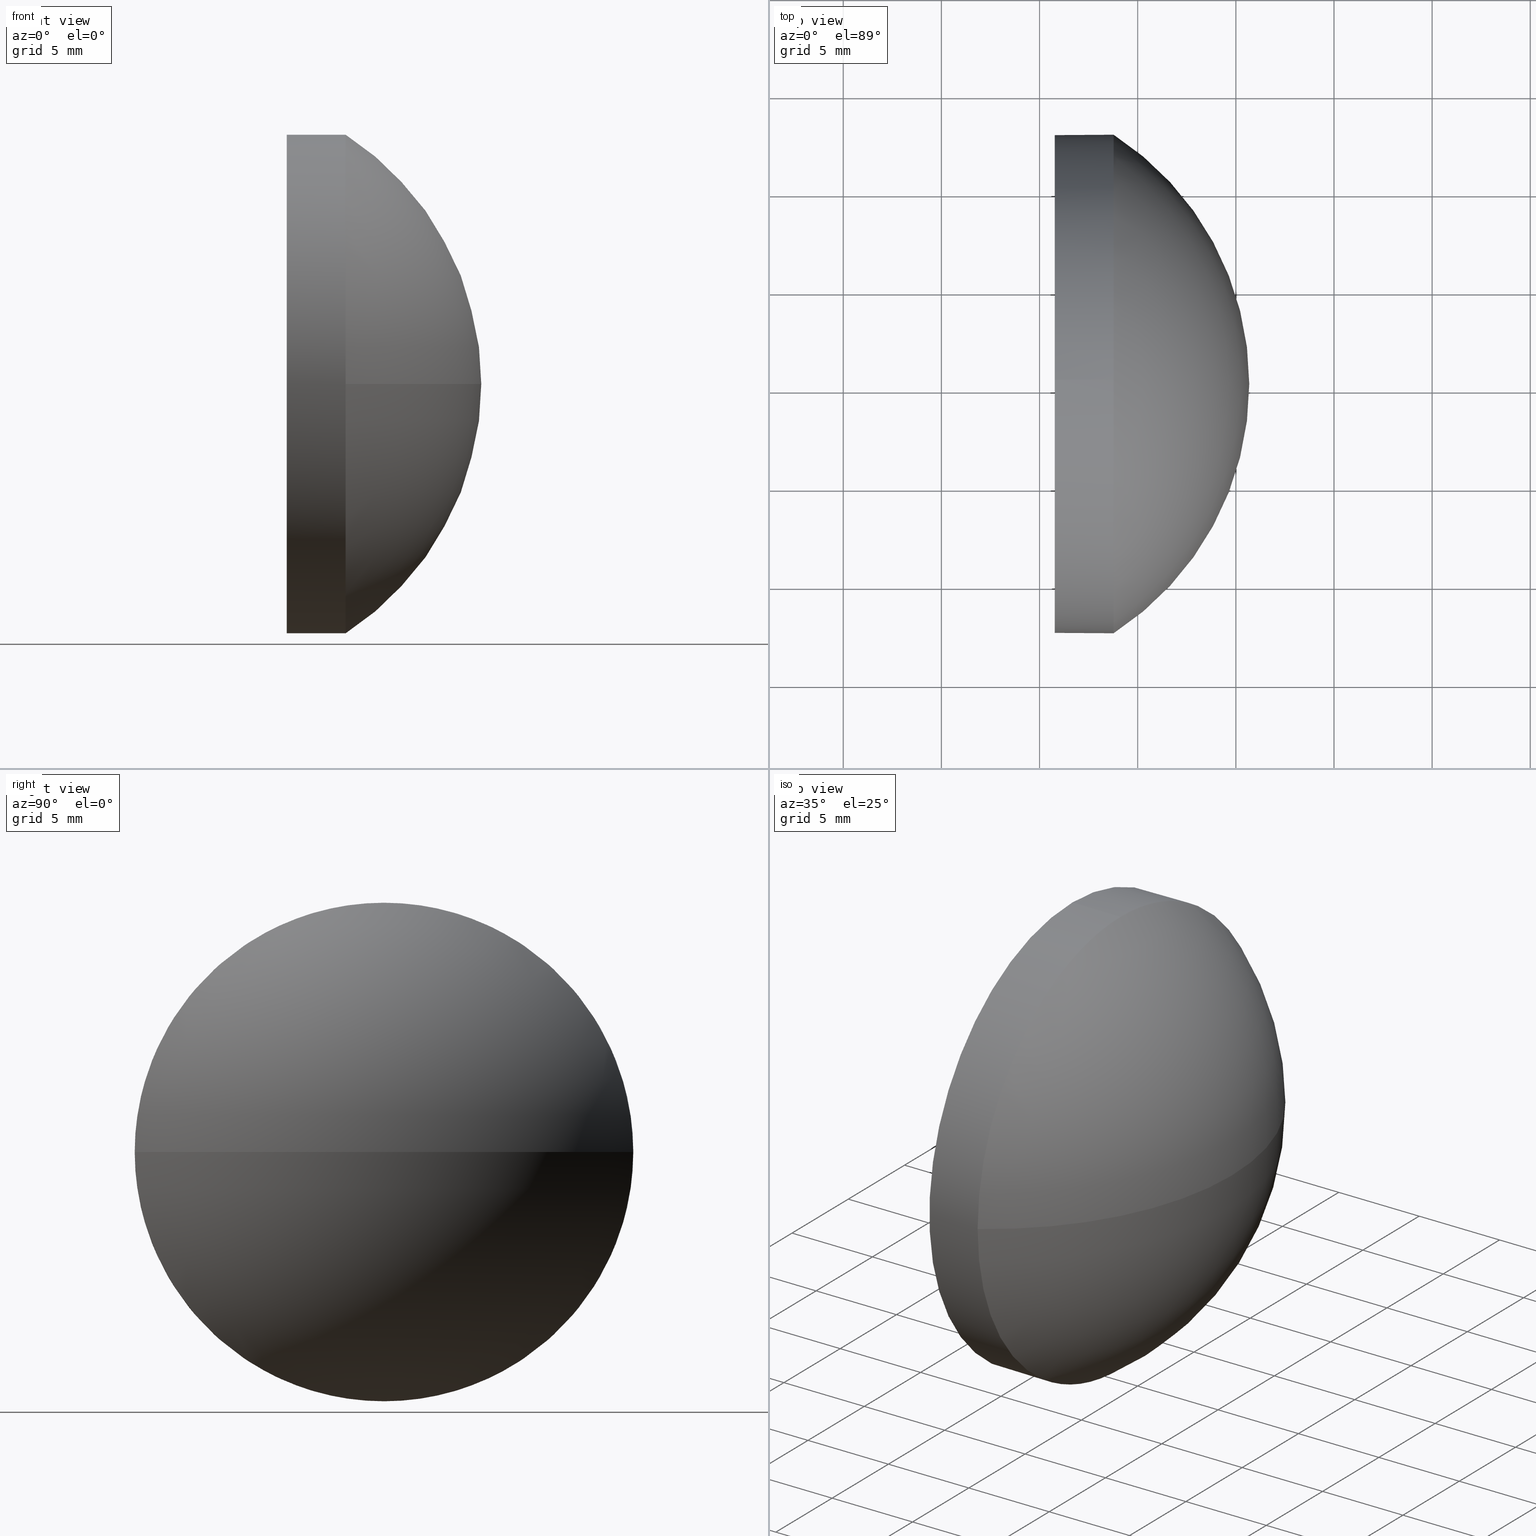
[diagram: canonical four-view strip — front | top / right | iso, engineering-drawing reading convention]
A machine part, canonical four-view strip (front | top / right | iso — engineering-drawing reading convention). The complete STEP part file that produces these views, byte-faithful:
ISO-10303-21;
HEADER;
FILE_DESCRIPTION (( 'STEP AP214' ),
    '1' );
FILE_NAME ('400018.STEP',
    '2019-08-21T05:51:47',
    ( '' ),
    ( '' ),
    'SwSTEP 2.0',
    'SolidWorks 2016',
    '' );
FILE_SCHEMA (( 'AUTOMOTIVE_DESIGN' ));
ENDSEC;

DATA;
#1 = PRODUCT_DEFINITION_FORMATION_WITH_SPECIFIED_SOURCE ( '�κ�', '', #99, .NOT_KNOWN. ) ;
#2 = AXIS2_PLACEMENT_3D ( 'NONE', #179, #170, #69 ) ;
#3 = FACE_OUTER_BOUND ( 'NONE', #33, .T. ) ;
#4 = EDGE_CURVE ( 'NONE', #186, #147, #66, .T. ) ;
#5 = DIRECTION ( 'NONE',  ( -0.0000000000000000000, 0.0000000000000000000, -1.000000000000000000 ) ) ;
#6 = UNCERTAINTY_MEASURE_WITH_UNIT (LENGTH_MEASURE( 1.000000000000000100E-005 ), #28, 'distance_accuracy_value', 'NONE');
#7 = PLANE ( 'NONE',  #16 ) ;
#8 = EDGE_CURVE ( 'NONE', #147, #178, #183, .T. ) ;
#9 = DIRECTION ( 'NONE',  ( 0.0000000000000000000, 1.224646799147353200E-016, -1.000000000000000000 ) ) ;
#10 = DIRECTION ( 'NONE',  ( -0.0000000000000000000, 0.0000000000000000000, -1.000000000000000000 ) ) ;
#11 = APPLICATION_CONTEXT ( 'automotive_design' ) ;
#12 =( LENGTH_UNIT ( ) NAMED_UNIT ( * ) SI_UNIT ( .MILLI., .METRE. ) );
#13 = ORIENTED_EDGE ( 'NONE', *, *, #36, .F. ) ;
#14 = ADVANCED_BREP_SHAPE_REPRESENTATION ( '400018', ( #168, #152 ), #135 ) ;
#15 = EDGE_LOOP ( 'NONE', ( #67, #17 ) ) ;
#16 = AXIS2_PLACEMENT_3D ( 'NONE', #123, #55, #37 ) ;
#17 = ORIENTED_EDGE ( 'NONE', *, *, #36, .T. ) ;
#18 = CARTESIAN_POINT ( 'NONE',  ( 118.7754838021861900, 65.23355492641219700, 0.0000000000000000000 ) ) ;
#19 = CIRCLE ( 'NONE', #52, 15.12800000000000200 ) ;
#20 = DIRECTION ( 'NONE',  ( -1.000000000000000000, -0.0000000000000000000, -0.0000000000000000000 ) ) ;
#21 = DIRECTION ( 'NONE',  ( -1.000000000000000000, -0.0000000000000000000, -0.0000000000000000000 ) ) ;
#22 = DIRECTION ( 'NONE',  ( -1.000000000000000000, -0.0000000000000000000, -0.0000000000000000000 ) ) ;
#23 = SURFACE_STYLE_USAGE ( .BOTH. , #157 ) ;
#24 = ORIENTED_EDGE ( 'NONE', *, *, #4, .F. ) ;
#25 = CARTESIAN_POINT ( 'NONE',  ( 110.1653732284884500, 65.23355492641219700, 0.0000000000000000000 ) ) ;
#26 =( NAMED_UNIT ( * ) SI_UNIT ( $, .STERADIAN. ) SOLID_ANGLE_UNIT ( ) );
#27 = CARTESIAN_POINT ( 'NONE',  ( 118.7754838021861900, 52.53355492641219400, -1.555301434917138200E-015 ) ) ;
#28 =( LENGTH_UNIT ( ) NAMED_UNIT ( * ) SI_UNIT ( .MILLI., .METRE. ) );
#29 = AXIS2_PLACEMENT_3D ( 'NONE', #142, #112, #173 ) ;
#30 = CLOSED_SHELL ( 'NONE', ( #97, #34, #105, #107, #38 ) ) ;
#31 = EDGE_CURVE ( 'NONE', #91, #186, #35, .T. ) ;
#32 = PRODUCT_DEFINITION_SHAPE ( 'NONE', 'NONE',  #180 ) ;
#33 = EDGE_LOOP ( 'NONE', ( #81, #145, #87, #68 ) ) ;
#34 = ADVANCED_FACE ( 'NONE', ( #64 ), #104, .T. ) ;
#35 = CIRCLE ( 'NONE', #82, 12.70000000000000300 ) ;
#36 = EDGE_CURVE ( 'NONE', #103, #137, #162, .T. ) ;
#37 = DIRECTION ( 'NONE',  ( 0.0000000000000000000, 0.0000000000000000000, -1.000000000000000000 ) ) ;
#38 = ADVANCED_FACE ( 'NONE', ( #71 ), #7, .F. ) ;
#39 = ORIENTED_EDGE ( 'NONE', *, *, #79, .T. ) ;
#40 = CARTESIAN_POINT ( 'NONE',  ( 110.1653732284884500, 65.23355492641219700, -12.70000000000000300 ) ) ;
#41 =( LENGTH_UNIT ( ) NAMED_UNIT ( * ) SI_UNIT ( .MILLI., .METRE. ) );
#42 = CARTESIAN_POINT ( 'NONE',  ( 110.1653732284884500, 65.23355492641219700, 0.0000000000000000000 ) ) ;
#43 = AXIS2_PLACEMENT_3D ( 'NONE', #18, #83, #109 ) ;
#44 = CARTESIAN_POINT ( 'NONE',  ( 110.5556064308381300, 65.23355492641219700, 0.0000000000000000000 ) ) ;
#45 = FILL_AREA_STYLE ('',( #70 ) ) ;
#46 = CARTESIAN_POINT ( 'NONE',  ( 110.5556064308381300, 65.23355492641219700, 0.0000000000000000000 ) ) ;
#47 =( NAMED_UNIT ( * ) PLANE_ANGLE_UNIT ( ) SI_UNIT ( $, .RADIAN. ) );
#48 = PRESENTATION_STYLE_ASSIGNMENT (( #23 ) ) ;
#49 =( NAMED_UNIT ( * ) SI_UNIT ( $, .STERADIAN. ) SOLID_ANGLE_UNIT ( ) );
#50 = VERTEX_POINT ( 'NONE', #56 ) ;
#51 = ORIENTED_EDGE ( 'NONE', *, *, #4, .T. ) ;
#52 = AXIS2_PLACEMENT_3D ( 'NONE', #44, #9, #74 ) ;
#53 = FACE_OUTER_BOUND ( 'NONE', #96, .T. ) ;
#54 = CIRCLE ( 'NONE', #140, 12.70000000000000300 ) ;
#55 = DIRECTION ( 'NONE',  ( 1.000000000000000000, 0.0000000000000000000, 0.0000000000000000000 ) ) ;
#56 = CARTESIAN_POINT ( 'NONE',  ( 125.6836064308381300, 65.23355492641219700, 0.0000000000000000000 ) ) ;
#57 = AXIS2_PLACEMENT_3D ( 'NONE', #164, #5, #136 ) ;
#58 = APPLICATION_CONTEXT ( 'automotive_design' ) ;
#59 = VECTOR ( 'NONE', #22, 1000.000000000000000 ) ;
#60 = DIRECTION ( 'NONE',  ( 0.0000000000000000000, 0.0000000000000000000, 1.000000000000000000 ) ) ;
#61 = DIRECTION ( 'NONE',  ( -1.000000000000000000, -0.0000000000000000000, -0.0000000000000000000 ) ) ;
#62 =( NAMED_UNIT ( * ) PLANE_ANGLE_UNIT ( ) SI_UNIT ( $, .RADIAN. ) );
#63 = ORIENTED_EDGE ( 'NONE', *, *, #79, .F. ) ;
#64 = FACE_OUTER_BOUND ( 'NONE', #158, .T. ) ;
#65 = AXIS2_PLACEMENT_3D ( 'NONE', #42, #20, #184 ) ;
#66 = CIRCLE ( 'NONE', #2, 12.70000000000000300 ) ;
#67 = ORIENTED_EDGE ( 'NONE', *, *, #76, .T. ) ;
#68 = ORIENTED_EDGE ( 'NONE', *, *, #177, .F. ) ;
#69 = DIRECTION ( 'NONE',  ( 0.0000000000000000000, 0.0000000000000000000, 1.000000000000000000 ) ) ;
#70 = FILL_AREA_STYLE_COLOUR ( '', #165 ) ;
#71 = FACE_OUTER_BOUND ( 'NONE', #15, .T. ) ;
#72 = CARTESIAN_POINT ( 'NONE',  ( 118.7754838021861900, 65.23355492641219700, 0.0000000000000000000 ) ) ;
#73 = AXIS2_PLACEMENT_3D ( 'NONE', #46, #10, #113 ) ;
#74 = DIRECTION ( 'NONE',  ( 0.0000000000000000000, 1.000000000000000000, 1.224646799147352700E-016 ) ) ;
#75 = DIRECTION ( 'NONE',  ( 1.000000000000000000, 0.0000000000000000000, 0.0000000000000000000 ) ) ;
#76 = EDGE_CURVE ( 'NONE', #137, #103, #134, .T. ) ;
#77 = ORIENTED_EDGE ( 'NONE', *, *, #88, .F. ) ;
#78 = COLOUR_RGB ( '',1.000000000000000000, 1.000000000000000000, 1.000000000000000000 ) ;
#79 = EDGE_CURVE ( 'NONE', #147, #103, #141, .T. ) ;
#80 = CARTESIAN_POINT ( 'NONE',  ( 115.7736064308381300, 65.23355492641219700, 0.0000000000000000000 ) ) ;
#81 = ORIENTED_EDGE ( 'NONE', *, *, #92, .F. ) ;
#82 = AXIS2_PLACEMENT_3D ( 'NONE', #122, #108, #98 ) ;
#83 = DIRECTION ( 'NONE',  ( -1.000000000000000000, -0.0000000000000000000, -0.0000000000000000000 ) ) ;
#84 = CARTESIAN_POINT ( 'NONE',  ( 115.7736064308381300, 65.23355492641219700, -12.70000000000000300 ) ) ;
#85 = APPLICATION_PROTOCOL_DEFINITION ( 'draft international standard', 'automotive_design', 1998, #58 ) ;
#86 = PRESENTATION_LAYER_ASSIGNMENT (  '', '', ( #160 ) ) ;
#87 = ORIENTED_EDGE ( 'NONE', *, *, #31, .F. ) ;
#88 = EDGE_CURVE ( 'NONE', #91, #137, #93, .T. ) ;
#89 = SPHERICAL_SURFACE ( 'NONE', #73, 15.12799999999999500 ) ;
#90 = PRODUCT_DEFINITION_CONTEXT ( 'detailed design', #11, 'design' ) ;
#91 = VERTEX_POINT ( 'NONE', #181 ) ;
#92 = EDGE_CURVE ( 'NONE', #50, #178, #19, .T. ) ;
#93 = LINE ( 'NONE', #94, #127 ) ;
#94 = CARTESIAN_POINT ( 'NONE',  ( 110.1653732284884500, 65.23355492641219700, 12.70000000000000300 ) ) ;
#95 =( GEOMETRIC_REPRESENTATION_CONTEXT ( 3 ) GLOBAL_UNCERTAINTY_ASSIGNED_CONTEXT ( ( #161 ) ) GLOBAL_UNIT_ASSIGNED_CONTEXT ( ( #41, #126, #26 ) ) REPRESENTATION_CONTEXT ( 'NONE', 'WORKASPACE' ) );
#96 = EDGE_LOOP ( 'NONE', ( #51, #39, #115, #77, #153 ) ) ;
#97 = ADVANCED_FACE ( 'NONE', ( #53 ), #130, .T. ) ;
#98 = DIRECTION ( 'NONE',  ( 0.0000000000000000000, 0.0000000000000000000, 1.000000000000000000 ) ) ;
#99 = PRODUCT ( '400018', '400018', '', ( #101 ) ) ;
#100 = SURFACE_SIDE_STYLE ('',( #121 ) ) ;
#101 = PRODUCT_CONTEXT ( 'NONE', #58, 'mechanical' ) ;
#102 = AXIS2_PLACEMENT_3D ( 'NONE', #25, #185, #60 ) ;
#103 = VERTEX_POINT ( 'NONE', #84 ) ;
#104 = SPHERICAL_SURFACE ( 'NONE', #57, 15.12799999999999500 ) ;
#105 = ADVANCED_FACE ( 'NONE', ( #3 ), #89, .T. ) ;
#106 = STYLED_ITEM ( 'NONE', ( #48 ), #168 ) ;
#107 = ADVANCED_FACE ( 'NONE', ( #120 ), #156, .T. ) ;
#108 = DIRECTION ( 'NONE',  ( -1.000000000000000000, -0.0000000000000000000, -0.0000000000000000000 ) ) ;
#109 = DIRECTION ( 'NONE',  ( 0.0000000000000000000, 0.0000000000000000000, 1.000000000000000000 ) ) ;
#110 = FILL_AREA_STYLE_COLOUR ( '', #78 ) ;
#111 = ORIENTED_EDGE ( 'NONE', *, *, #88, .T. ) ;
#112 = DIRECTION ( 'NONE',  ( -0.0000000000000000000, 0.0000000000000000000, 1.000000000000000000 ) ) ;
#113 = DIRECTION ( 'NONE',  ( 0.0000000000000000000, 1.000000000000000000, 0.0000000000000000000 ) ) ;
#114 = CARTESIAN_POINT ( 'NONE',  ( 118.7754838021861900, 65.23355492641219700, -12.70000000000000300 ) ) ;
#115 = ORIENTED_EDGE ( 'NONE', *, *, #76, .F. ) ;
#116 = PRESENTATION_LAYER_ASSIGNMENT (  '', '', ( #106 ) ) ;
#117 = SURFACE_STYLE_FILL_AREA ( #45 ) ;
#118 = ORIENTED_EDGE ( 'NONE', *, *, #177, .T. ) ;
#119 = AXIS2_PLACEMENT_3D ( 'NONE', #151, #21, #154 ) ;
#120 = FACE_OUTER_BOUND ( 'NONE', #150, .T. ) ;
#121 = SURFACE_STYLE_FILL_AREA ( #144 ) ;
#122 = CARTESIAN_POINT ( 'NONE',  ( 118.7754838021861900, 65.23355492641219700, 0.0000000000000000000 ) ) ;
#123 = CARTESIAN_POINT ( 'NONE',  ( 115.7736064308381300, 65.23355492641219700, 0.0000000000000000000 ) ) ;
#124 = DIRECTION ( 'NONE',  ( 0.0000000000000000000, 0.0000000000000000000, 1.000000000000000000 ) ) ;
#125 = SURFACE_STYLE_USAGE ( .BOTH. , #100 ) ;
#126 =( NAMED_UNIT ( * ) PLANE_ANGLE_UNIT ( ) SI_UNIT ( $, .RADIAN. ) );
#127 = VECTOR ( 'NONE', #138, 1000.000000000000000 ) ;
#128 = MECHANICAL_DESIGN_GEOMETRIC_PRESENTATION_REPRESENTATION (  '', ( #106 ), #133 ) ;
#129 = CARTESIAN_POINT ( 'NONE',  ( 118.7754838021861900, 77.93355492641218500, 0.0000000000000000000 ) ) ;
#130 = CYLINDRICAL_SURFACE ( 'NONE', #65, 12.70000000000000300 ) ;
#131 = PRODUCT_RELATED_PRODUCT_CATEGORY ( 'part', '', ( #99 ) ) ;
#132 = ORIENTED_EDGE ( 'NONE', *, *, #169, .F. ) ;
#133 =( GEOMETRIC_REPRESENTATION_CONTEXT ( 3 ) GLOBAL_UNCERTAINTY_ASSIGNED_CONTEXT ( ( #6 ) ) GLOBAL_UNIT_ASSIGNED_CONTEXT ( ( #28, #62, #171 ) ) REPRESENTATION_CONTEXT ( 'NONE', 'WORKASPACE' ) );
#134 = CIRCLE ( 'NONE', #119, 12.70000000000000300 ) ;
#135 =( GEOMETRIC_REPRESENTATION_CONTEXT ( 3 ) GLOBAL_UNCERTAINTY_ASSIGNED_CONTEXT ( ( #146 ) ) GLOBAL_UNIT_ASSIGNED_CONTEXT ( ( #12, #47, #49 ) ) REPRESENTATION_CONTEXT ( 'NONE', 'WORKASPACE' ) );
#136 = DIRECTION ( 'NONE',  ( 0.0000000000000000000, 1.000000000000000000, 0.0000000000000000000 ) ) ;
#137 = VERTEX_POINT ( 'NONE', #143 ) ;
#138 = DIRECTION ( 'NONE',  ( -1.000000000000000000, -0.0000000000000000000, -0.0000000000000000000 ) ) ;
#139 = APPLICATION_PROTOCOL_DEFINITION ( 'draft international standard', 'automotive_design', 1998, #11 ) ;
#140 = AXIS2_PLACEMENT_3D ( 'NONE', #72, #61, #167 ) ;
#141 = LINE ( 'NONE', #40, #59 ) ;
#142 = CARTESIAN_POINT ( 'NONE',  ( 110.5556064308381300, 65.23355492641219700, 0.0000000000000000000 ) ) ;
#143 = CARTESIAN_POINT ( 'NONE',  ( 115.7736064308381300, 65.23355492641219700, 12.70000000000000300 ) ) ;
#144 = FILL_AREA_STYLE ('',( #110 ) ) ;
#145 = ORIENTED_EDGE ( 'NONE', *, *, #169, .T. ) ;
#146 = UNCERTAINTY_MEASURE_WITH_UNIT (LENGTH_MEASURE( 1.000000000000000100E-005 ), #12, 'distance_accuracy_value', 'NONE');
#147 = VERTEX_POINT ( 'NONE', #114 ) ;
#148 = SHAPE_DEFINITION_REPRESENTATION ( #32, #14 ) ;
#149 = MECHANICAL_DESIGN_GEOMETRIC_PRESENTATION_REPRESENTATION (  '', ( #160 ), #95 ) ;
#150 = EDGE_LOOP ( 'NONE', ( #63, #172, #118, #111, #13 ) ) ;
#151 = CARTESIAN_POINT ( 'NONE',  ( 115.7736064308381300, 65.23355492641219700, 0.0000000000000000000 ) ) ;
#152 = AXIS2_PLACEMENT_3D ( 'NONE', #174, #155, #75 ) ;
#153 = ORIENTED_EDGE ( 'NONE', *, *, #31, .T. ) ;
#154 = DIRECTION ( 'NONE',  ( 0.0000000000000000000, 0.0000000000000000000, 1.000000000000000000 ) ) ;
#155 = DIRECTION ( 'NONE',  ( 0.0000000000000000000, 0.0000000000000000000, 1.000000000000000000 ) ) ;
#156 = CYLINDRICAL_SURFACE ( 'NONE', #102, 12.70000000000000300 ) ;
#157 = SURFACE_SIDE_STYLE ('',( #117 ) ) ;
#158 = EDGE_LOOP ( 'NONE', ( #132, #176, #175, #24 ) ) ;
#159 = CIRCLE ( 'NONE', #29, 15.12799999999998900 ) ;
#160 = STYLED_ITEM ( 'NONE', ( #163 ), #14 ) ;
#161 = UNCERTAINTY_MEASURE_WITH_UNIT (LENGTH_MEASURE( 1.000000000000000100E-005 ), #41, 'distance_accuracy_value', 'NONE');
#162 = CIRCLE ( 'NONE', #182, 12.70000000000000300 ) ;
#163 = PRESENTATION_STYLE_ASSIGNMENT (( #125 ) ) ;
#164 = CARTESIAN_POINT ( 'NONE',  ( 110.5556064308381300, 65.23355492641219700, 0.0000000000000000000 ) ) ;
#165 = COLOUR_RGB ( '',1.000000000000000000, 1.000000000000000000, 1.000000000000000000 ) ;
#166 = DIRECTION ( 'NONE',  ( -1.000000000000000000, -0.0000000000000000000, -0.0000000000000000000 ) ) ;
#167 = DIRECTION ( 'NONE',  ( 0.0000000000000000000, 0.0000000000000000000, 1.000000000000000000 ) ) ;
#168 = MANIFOLD_SOLID_BREP ( '��ת1', #30 ) ;
#169 = EDGE_CURVE ( 'NONE', #50, #186, #159, .T. ) ;
#170 = DIRECTION ( 'NONE',  ( -1.000000000000000000, -0.0000000000000000000, -0.0000000000000000000 ) ) ;
#171 =( NAMED_UNIT ( * ) SI_UNIT ( $, .STERADIAN. ) SOLID_ANGLE_UNIT ( ) );
#172 = ORIENTED_EDGE ( 'NONE', *, *, #8, .T. ) ;
#173 = DIRECTION ( 'NONE',  ( 1.000000000000000000, 0.0000000000000000000, 0.0000000000000000000 ) ) ;
#174 = CARTESIAN_POINT ( 'NONE',  ( 0.0000000000000000000, 0.0000000000000000000, 0.0000000000000000000 ) ) ;
#175 = ORIENTED_EDGE ( 'NONE', *, *, #8, .F. ) ;
#176 = ORIENTED_EDGE ( 'NONE', *, *, #92, .T. ) ;
#177 = EDGE_CURVE ( 'NONE', #178, #91, #54, .T. ) ;
#178 = VERTEX_POINT ( 'NONE', #27 ) ;
#179 = CARTESIAN_POINT ( 'NONE',  ( 118.7754838021861900, 65.23355492641219700, 0.0000000000000000000 ) ) ;
#180 = PRODUCT_DEFINITION ( 'δ֪', '', #1, #90 ) ;
#181 = CARTESIAN_POINT ( 'NONE',  ( 118.7754838021861900, 65.23355492641219700, 12.70000000000000300 ) ) ;
#182 = AXIS2_PLACEMENT_3D ( 'NONE', #80, #166, #124 ) ;
#183 = CIRCLE ( 'NONE', #43, 12.70000000000000300 ) ;
#184 = DIRECTION ( 'NONE',  ( 0.0000000000000000000, 0.0000000000000000000, 1.000000000000000000 ) ) ;
#185 = DIRECTION ( 'NONE',  ( -1.000000000000000000, -0.0000000000000000000, -0.0000000000000000000 ) ) ;
#186 = VERTEX_POINT ( 'NONE', #129 ) ;
ENDSEC;
END-ISO-10303-21;
